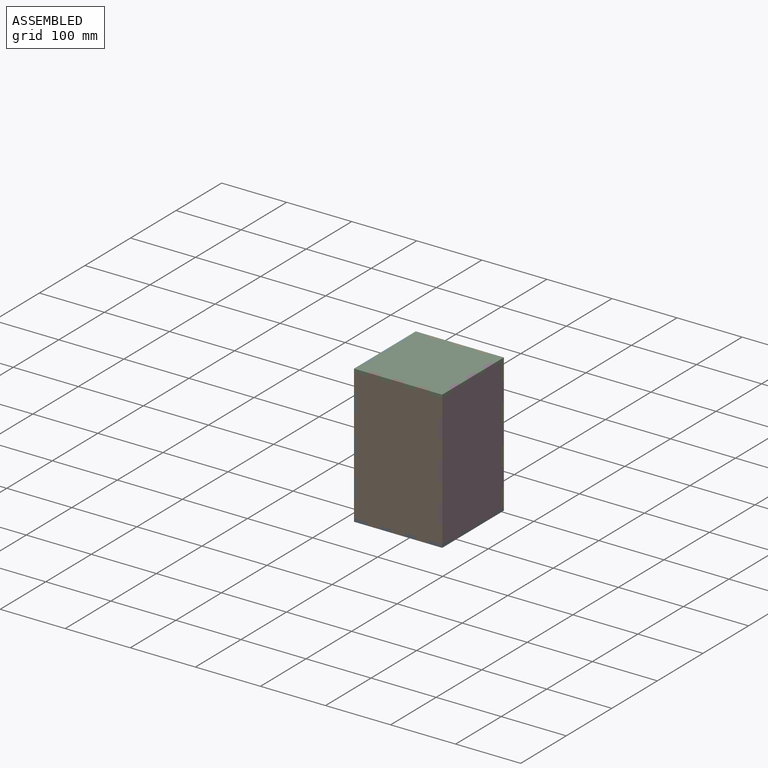
[diagram: assembled view]
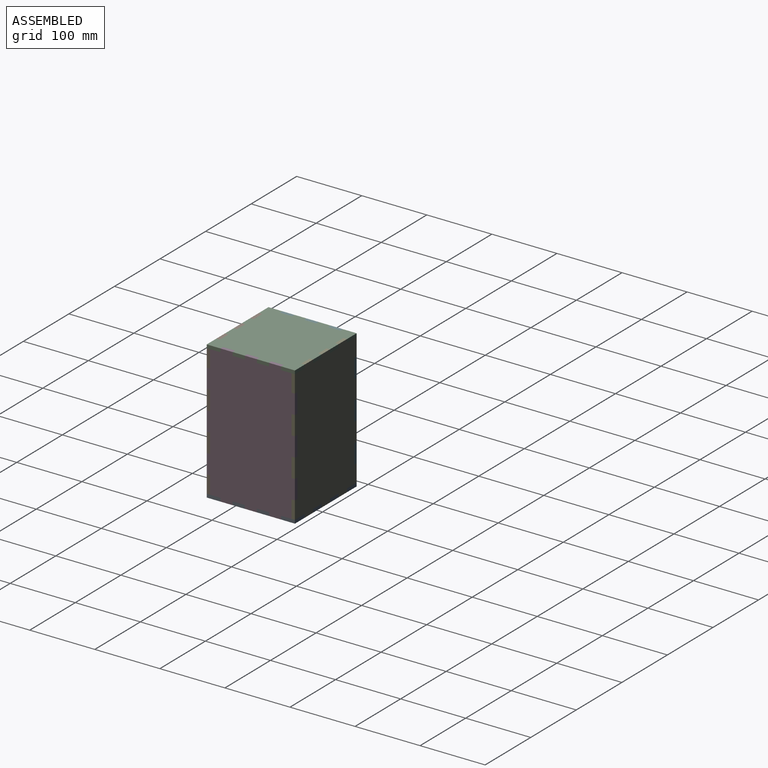
[diagram: assembled view, second angle]
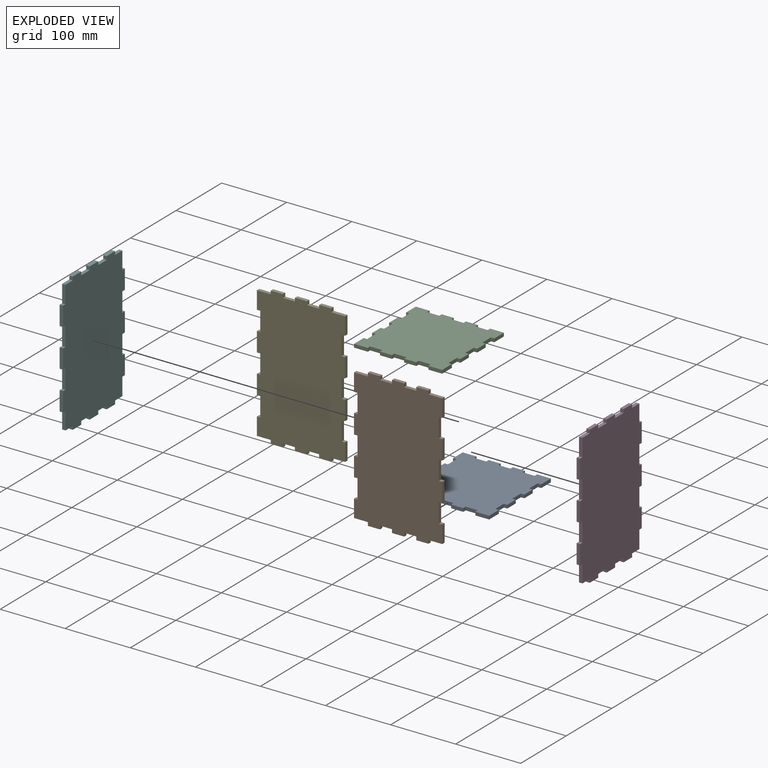
[diagram: exploded view]
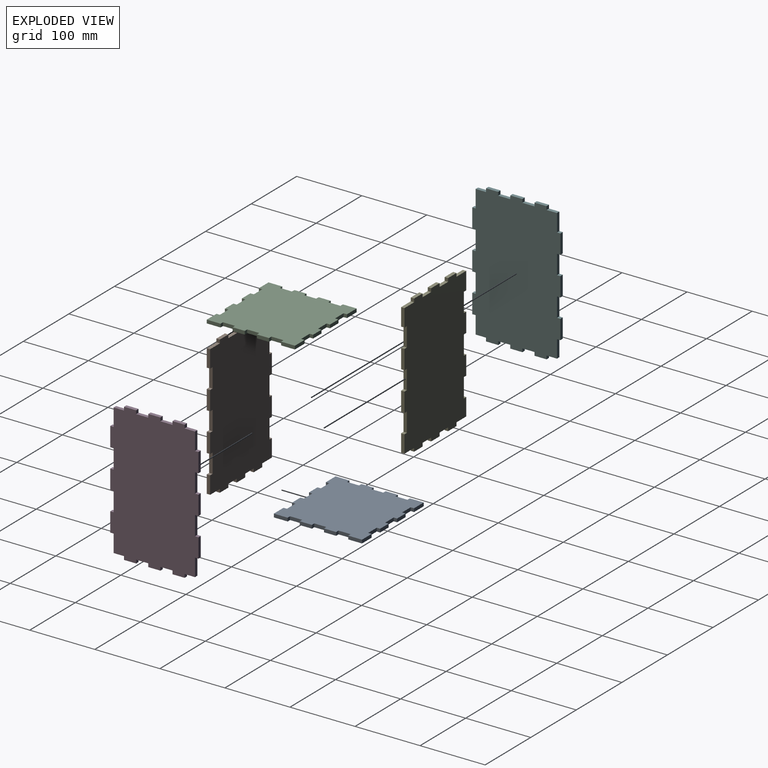
[diagram: exploded view, second angle]
ASSEMBLY  parts=6 mates=5
PART A: 54 faces, bbox 135.5x135.5x5.3 mm
  f0: plane 18.61x5.25mm, normal (0,-1,0), area 97.7mm2, adj f1,f51,f52,f53
  f1: plane 5.25x5.25mm, normal (-1,0,0), area 27.6mm2, adj f0,f2,f52,f53
  f2: plane 21.23x5.25mm, normal (0,-1,0), area 111.5mm2, adj f1,f3,f52,f53
  f3: plane 21.23x5.25mm, normal (1,0,0), area 111.5mm2, adj f2,f4,f52,f53
  f4: plane 5.25x5.25mm, normal (0,1,0), area 27.6mm2, adj f3,f5,f52,f53
  f5: plane 18.61x5.25mm, normal (1,0,0), area 97.7mm2, adj f4,f6,f52,f53
  f6: plane 5.25x5.25mm, normal (0,-1,0), area 27.6mm2, adj f5,f7,f52,f53
  f7: plane 18.61x5.25mm, normal (1,0,0), area 97.7mm2, adj f6,f8,f52,f53
  f8: plane 5.25x5.25mm, normal (0,1,0), area 27.6mm2, adj f7,f9,f52,f53
  f9: plane 18.61x5.25mm, normal (1,0,0), area 97.7mm2, adj f8,f10,f52,f53
  f10: plane 5.25x5.25mm, normal (0,-1,0), area 27.6mm2, adj f9,f11,f52,f53
  f11: plane 18.61x5.25mm, normal (1,0,0), area 97.7mm2, adj f10,f12,f52,f53
  f12: plane 5.25x5.25mm, normal (0,1,0), area 27.6mm2, adj f11,f13,f52,f53
  f13: plane 18.61x5.25mm, normal (1,0,0), area 97.7mm2, adj f12,f14,f52,f53
  f14: plane 5.25x5.25mm, normal (0,-1,0), area 27.6mm2, adj f13,f15,f52,f53
  f15: plane 21.23x5.25mm, normal (1,0,0), area 111.5mm2, adj f14,f16,f52,f53
  f16: plane 21.23x5.25mm, normal (0,1,0), area 111.5mm2, adj f15,f17,f52,f53
  f17: plane 5.25x5.25mm, normal (-1,0,0), area 27.6mm2, adj f16,f18,f52,f53
  f18: plane 18.61x5.25mm, normal (0,1,0), area 97.7mm2, adj f17,f19,f52,f53
  f19: plane 5.25x5.25mm, normal (1,0,0), area 27.6mm2, adj f18,f20,f52,f53
  f20: plane 18.61x5.25mm, normal (0,1,0), area 97.7mm2, adj f19,f21,f52,f53
  f21: plane 5.25x5.25mm, normal (-1,0,0), area 27.6mm2, adj f20,f22,f52,f53
  f22: plane 18.61x5.25mm, normal (0,1,0), area 97.7mm2, adj f21,f23,f52,f53
  f23: plane 5.25x5.25mm, normal (1,0,0), area 27.6mm2, adj f22,f24,f52,f53
  f24: plane 18.61x5.25mm, normal (0,1,0), area 97.7mm2, adj f23,f25,f52,f53
  f25: plane 5.25x5.25mm, normal (-1,0,0), area 27.6mm2, adj f24,f26,f52,f53
  f26: plane 18.61x5.25mm, normal (0,1,0), area 97.7mm2, adj f25,f27,f52,f53
  f27: plane 5.25x5.25mm, normal (1,0,0), area 27.6mm2, adj f26,f28,f52,f53
  f28: plane 21.23x5.25mm, normal (0,1,0), area 111.5mm2, adj f27,f29,f52,f53
  f29: plane 21.23x5.25mm, normal (-1,0,0), area 111.5mm2, adj f28,f30,f52,f53
  f30: plane 5.25x5.25mm, normal (0,-1,0), area 27.6mm2, adj f29,f31,f52,f53
  f31: plane 18.61x5.25mm, normal (-1,0,0), area 97.7mm2, adj f30,f32,f52,f53
  f32: plane 5.25x5.25mm, normal (0,1,0), area 27.6mm2, adj f31,f33,f52,f53
  f33: plane 18.61x5.25mm, normal (-1,0,0), area 97.7mm2, adj f32,f34,f52,f53
  f34: plane 5.25x5.25mm, normal (0,-1,0), area 27.6mm2, adj f33,f35,f52,f53
  f35: plane 18.61x5.25mm, normal (-1,0,0), area 97.7mm2, adj f34,f36,f52,f53
  f36: plane 5.25x5.25mm, normal (0,1,0), area 27.6mm2, adj f35,f37,f52,f53
  f37: plane 18.61x5.25mm, normal (-1,0,0), area 97.7mm2, adj f36,f38,f52,f53
  f38: plane 5.25x5.25mm, normal (0,-1,0), area 27.6mm2, adj f37,f39,f52,f53
  f39: plane 18.61x5.25mm, normal (-1,0,0), area 97.7mm2, adj f38,f40,f52,f53
  f40: plane 5.25x5.25mm, normal (0,1,0), area 27.6mm2, adj f39,f41,f52,f53
  f41: plane 21.23x5.25mm, normal (-1,0,0), area 111.5mm2, adj f40,f42,f52,f53
  f42: plane 21.23x5.25mm, normal (0,-1,0), area 111.5mm2, adj f41,f43,f52,f53
  f43: plane 5.25x5.25mm, normal (1,0,0), area 27.6mm2, adj f42,f44,f52,f53
  f44: plane 18.61x5.25mm, normal (0,-1,0), area 97.7mm2, adj f43,f45,f52,f53
  f45: plane 5.25x5.25mm, normal (-1,0,0), area 27.6mm2, adj f44,f46,f52,f53
  f46: plane 18.61x5.25mm, normal (0,-1,0), area 97.7mm2, adj f45,f47,f52,f53
  f47: plane 5.25x5.25mm, normal (1,0,0), area 27.6mm2, adj f46,f48,f52,f53
  f48: plane 18.61x5.25mm, normal (0,-1,0), area 97.7mm2, adj f47,f49,f52,f53
  f49: plane 5.25x5.25mm, normal (-1,0,0), area 27.6mm2, adj f48,f50,f52,f53
  f50: plane 18.61x5.25mm, normal (0,-1,0), area 97.7mm2, adj f49,f51,f52,f53
  f51: plane 5.25x5.25mm, normal (1,0,0), area 27.6mm2, adj f0,f50,f52,f53
  f52: plane 135.5x135.5mm, normal (0,0,1), area 17188mm2, adj f0,f1,f2,f3,f4,f5,f6,f7
  f53: plane 135.5x135.5mm, normal (0,0,-1), area 17188mm2, adj f0,f1,f2,f3,f4,f5,f6,f7
PART B: 54 faces, bbox 135.5x5.3x212.8 mm
  f0: plane 21.23x5.25mm, normal (0,0,-1), area 111.5mm2, adj f1,f51,f52,f53
  f1: plane 5.25x5.25mm, normal (-1,0,0), area 27.6mm2, adj f0,f2,f52,f53
  f2: plane 18.61x5.25mm, normal (0,0,-1), area 97.7mm2, adj f1,f3,f52,f53
  f3: plane 5.25x5.25mm, normal (1,0,0), area 27.6mm2, adj f2,f4,f52,f53
  f4: plane 18.61x5.25mm, normal (0,0,-1), area 97.7mm2, adj f3,f5,f52,f53
  f5: plane 5.25x5.25mm, normal (-1,0,0), area 27.6mm2, adj f4,f6,f52,f53
  f6: plane 18.61x5.25mm, normal (0,0,-1), area 97.7mm2, adj f5,f7,f52,f53
  f7: plane 5.25x5.25mm, normal (1,0,0), area 27.6mm2, adj f6,f8,f52,f53
  f8: plane 18.61x5.25mm, normal (0,0,-1), area 97.7mm2, adj f7,f9,f52,f53
  f9: plane 5.25x5.25mm, normal (-1,0,0), area 27.6mm2, adj f8,f10,f52,f53
  f10: plane 18.61x5.25mm, normal (0,0,-1), area 97.7mm2, adj f9,f11,f52,f53
  f11: plane 5.25x5.25mm, normal (1,0,0), area 27.6mm2, adj f10,f12,f52,f53
  f12: plane 21.23x5.25mm, normal (0,0,-1), area 111.5mm2, adj f11,f13,f52,f53
  f13: plane 27.02x5.25mm, normal (1,0,0), area 141.8mm2, adj f12,f14,f52,f53
  f14: plane 5.25x5.25mm, normal (0,0,1), area 27.6mm2, adj f13,f15,f52,f53
  f15: plane 29.64x5.25mm, normal (1,0,0), area 155.6mm2, adj f14,f16,f52,f53
  f16: plane 5.25x5.25mm, normal (0,0,-1), area 27.6mm2, adj f15,f17,f52,f53
  f17: plane 29.64x5.25mm, normal (1,0,0), area 155.6mm2, adj f16,f18,f52,f53
  f18: plane 5.25x5.25mm, normal (0,0,1), area 27.6mm2, adj f17,f19,f52,f53
  f19: plane 29.64x5.25mm, normal (1,0,0), area 155.6mm2, adj f18,f20,f52,f53
  f20: plane 5.25x5.25mm, normal (0,0,-1), area 27.6mm2, adj f19,f21,f52,f53
  f21: plane 29.64x5.25mm, normal (1,0,0), area 155.6mm2, adj f20,f22,f52,f53
  f22: plane 5.25x5.25mm, normal (0,0,1), area 27.6mm2, adj f21,f23,f52,f53
  f23: plane 29.64x5.25mm, normal (1,0,0), area 155.6mm2, adj f22,f24,f52,f53
  f24: plane 5.25x5.25mm, normal (0,0,-1), area 27.6mm2, adj f23,f25,f52,f53
  f25: plane 27.02x5.25mm, normal (1,0,0), area 141.8mm2, adj f24,f26,f52,f53
  f26: plane 21.23x5.25mm, normal (0,0,1), area 111.5mm2, adj f25,f27,f52,f53
  f27: plane 5.25x5.25mm, normal (1,0,0), area 27.6mm2, adj f26,f28,f52,f53
  f28: plane 18.61x5.25mm, normal (0,0,1), area 97.7mm2, adj f27,f29,f52,f53
  f29: plane 5.25x5.25mm, normal (-1,0,0), area 27.6mm2, adj f28,f30,f52,f53
  f30: plane 18.61x5.25mm, normal (0,0,1), area 97.7mm2, adj f29,f31,f52,f53
  f31: plane 5.25x5.25mm, normal (1,0,0), area 27.6mm2, adj f30,f32,f52,f53
  f32: plane 18.61x5.25mm, normal (0,0,1), area 97.7mm2, adj f31,f33,f52,f53
  f33: plane 5.25x5.25mm, normal (-1,0,0), area 27.6mm2, adj f32,f34,f52,f53
  f34: plane 18.61x5.25mm, normal (0,0,1), area 97.7mm2, adj f33,f35,f52,f53
  f35: plane 5.25x5.25mm, normal (1,0,0), area 27.6mm2, adj f34,f36,f52,f53
  f36: plane 18.61x5.25mm, normal (0,0,1), area 97.7mm2, adj f35,f37,f52,f53
  f37: plane 5.25x5.25mm, normal (-1,0,0), area 27.6mm2, adj f36,f38,f52,f53
  f38: plane 21.23x5.25mm, normal (0,0,1), area 111.5mm2, adj f37,f39,f52,f53
  f39: plane 27.02x5.25mm, normal (-1,0,0), area 141.8mm2, adj f38,f40,f52,f53
  f40: plane 5.25x5.25mm, normal (0,0,-1), area 27.6mm2, adj f39,f41,f52,f53
  f41: plane 29.64x5.25mm, normal (-1,0,0), area 155.6mm2, adj f40,f42,f52,f53
  f42: plane 5.25x5.25mm, normal (0,0,1), area 27.6mm2, adj f41,f43,f52,f53
  f43: plane 29.64x5.25mm, normal (-1,0,0), area 155.6mm2, adj f42,f44,f52,f53
  f44: plane 5.25x5.25mm, normal (0,0,-1), area 27.6mm2, adj f43,f45,f52,f53
  f45: plane 29.64x5.25mm, normal (-1,0,0), area 155.6mm2, adj f44,f46,f52,f53
  f46: plane 5.25x5.25mm, normal (0,0,1), area 27.6mm2, adj f45,f47,f52,f53
  f47: plane 29.64x5.25mm, normal (-1,0,0), area 155.6mm2, adj f46,f48,f52,f53
  f48: plane 5.25x5.25mm, normal (0,0,-1), area 27.6mm2, adj f47,f49,f52,f53
  f49: plane 29.64x5.25mm, normal (-1,0,0), area 155.6mm2, adj f48,f50,f52,f53
  f50: plane 5.25x5.25mm, normal (0,0,1), area 27.6mm2, adj f49,f51,f52,f53
  f51: plane 27.02x5.25mm, normal (-1,0,0), area 141.8mm2, adj f0,f50,f52,f53
  f52: plane 212.75x135.5mm, normal (0,-1,0), area 27057.8mm2, adj f0,f1,f2,f3,f4,f5,f6,f7
  f53: plane 212.75x135.5mm, normal (0,1,0), area 27057.8mm2, adj f0,f1,f2,f3,f4,f5,f6,f7
PART C: same geometry as A
PART D: 54 faces, bbox 135.5x5.3x212.8 mm
  f0: plane 15.98x5.25mm, normal (0,0,-1), area 83.9mm2, adj f1,f51,f52,f53
  f1: plane 5.25x5.25mm, normal (-1,0,0), area 27.6mm2, adj f0,f2,f52,f53
  f2: plane 18.61x5.25mm, normal (0,0,-1), area 97.7mm2, adj f1,f3,f52,f53
  f3: plane 5.25x5.25mm, normal (1,0,0), area 27.6mm2, adj f2,f4,f52,f53
  f4: plane 18.61x5.25mm, normal (0,0,-1), area 97.7mm2, adj f3,f5,f52,f53
  f5: plane 5.25x5.25mm, normal (-1,0,0), area 27.6mm2, adj f4,f6,f52,f53
  f6: plane 18.61x5.25mm, normal (0,0,-1), area 97.7mm2, adj f5,f7,f52,f53
  f7: plane 5.25x5.25mm, normal (1,0,0), area 27.6mm2, adj f6,f8,f52,f53
  f8: plane 18.61x5.25mm, normal (0,0,-1), area 97.7mm2, adj f7,f9,f52,f53
  f9: plane 5.25x5.25mm, normal (-1,0,0), area 27.6mm2, adj f8,f10,f52,f53
  f10: plane 18.61x5.25mm, normal (0,0,-1), area 97.7mm2, adj f9,f11,f52,f53
  f11: plane 5.25x5.25mm, normal (1,0,0), area 27.6mm2, adj f10,f12,f52,f53
  f12: plane 15.98x5.25mm, normal (0,0,-1), area 83.9mm2, adj f11,f13,f52,f53
  f13: plane 27.02x5.25mm, normal (1,0,0), area 141.8mm2, adj f12,f14,f52,f53
  f14: plane 5.25x5.25mm, normal (0,0,-1), area 27.6mm2, adj f13,f15,f52,f53
  f15: plane 29.64x5.25mm, normal (1,0,0), area 155.6mm2, adj f14,f16,f52,f53
  f16: plane 5.25x5.25mm, normal (0,0,1), area 27.6mm2, adj f15,f17,f52,f53
  f17: plane 29.64x5.25mm, normal (1,0,0), area 155.6mm2, adj f16,f18,f52,f53
  f18: plane 5.25x5.25mm, normal (0,0,-1), area 27.6mm2, adj f17,f19,f52,f53
  f19: plane 29.64x5.25mm, normal (1,0,0), area 155.6mm2, adj f18,f20,f52,f53
  f20: plane 5.25x5.25mm, normal (0,0,1), area 27.6mm2, adj f19,f21,f52,f53
  f21: plane 29.64x5.25mm, normal (1,0,0), area 155.6mm2, adj f20,f22,f52,f53
  f22: plane 5.25x5.25mm, normal (0,0,-1), area 27.6mm2, adj f21,f23,f52,f53
  f23: plane 29.64x5.25mm, normal (1,0,0), area 155.6mm2, adj f22,f24,f52,f53
  f24: plane 5.25x5.25mm, normal (0,0,1), area 27.6mm2, adj f23,f25,f52,f53
  f25: plane 27.02x5.25mm, normal (1,0,0), area 141.8mm2, adj f24,f26,f52,f53
  f26: plane 15.98x5.25mm, normal (0,0,1), area 83.9mm2, adj f25,f27,f52,f53
  f27: plane 5.25x5.25mm, normal (1,0,0), area 27.6mm2, adj f26,f28,f52,f53
  f28: plane 18.61x5.25mm, normal (0,0,1), area 97.7mm2, adj f27,f29,f52,f53
  f29: plane 5.25x5.25mm, normal (-1,0,0), area 27.6mm2, adj f28,f30,f52,f53
  f30: plane 18.61x5.25mm, normal (0,0,1), area 97.7mm2, adj f29,f31,f52,f53
  f31: plane 5.25x5.25mm, normal (1,0,0), area 27.6mm2, adj f30,f32,f52,f53
  f32: plane 18.61x5.25mm, normal (0,0,1), area 97.7mm2, adj f31,f33,f52,f53
  f33: plane 5.25x5.25mm, normal (-1,0,0), area 27.6mm2, adj f32,f34,f52,f53
  f34: plane 18.61x5.25mm, normal (0,0,1), area 97.7mm2, adj f33,f35,f52,f53
  f35: plane 5.25x5.25mm, normal (1,0,0), area 27.6mm2, adj f34,f36,f52,f53
  f36: plane 18.61x5.25mm, normal (0,0,1), area 97.7mm2, adj f35,f37,f52,f53
  f37: plane 5.25x5.25mm, normal (-1,0,0), area 27.6mm2, adj f36,f38,f52,f53
  f38: plane 15.98x5.25mm, normal (0,0,1), area 83.9mm2, adj f37,f39,f52,f53
  f39: plane 27.02x5.25mm, normal (-1,0,0), area 141.8mm2, adj f38,f40,f52,f53
  f40: plane 5.25x5.25mm, normal (0,0,1), area 27.6mm2, adj f39,f41,f52,f53
  f41: plane 29.64x5.25mm, normal (-1,0,0), area 155.6mm2, adj f40,f42,f52,f53
  f42: plane 5.25x5.25mm, normal (0,0,-1), area 27.6mm2, adj f41,f43,f52,f53
  f43: plane 29.64x5.25mm, normal (-1,0,0), area 155.6mm2, adj f42,f44,f52,f53
  f44: plane 5.25x5.25mm, normal (0,0,1), area 27.6mm2, adj f43,f45,f52,f53
  f45: plane 29.64x5.25mm, normal (-1,0,0), area 155.6mm2, adj f44,f46,f52,f53
  f46: plane 5.25x5.25mm, normal (0,0,-1), area 27.6mm2, adj f45,f47,f52,f53
  f47: plane 29.64x5.25mm, normal (-1,0,0), area 155.6mm2, adj f46,f48,f52,f53
  f48: plane 5.25x5.25mm, normal (0,0,1), area 27.6mm2, adj f47,f49,f52,f53
  f49: plane 29.64x5.25mm, normal (-1,0,0), area 155.6mm2, adj f48,f50,f52,f53
  f50: plane 5.25x5.25mm, normal (0,0,-1), area 27.6mm2, adj f49,f51,f52,f53
  f51: plane 27.02x5.25mm, normal (-1,0,0), area 141.8mm2, adj f0,f50,f52,f53
  f52: plane 212.75x135.5mm, normal (0,-1,0), area 26801.7mm2, adj f0,f1,f2,f3,f4,f5,f6,f7
  f53: plane 212.75x135.5mm, normal (0,1,0), area 26801.7mm2, adj f0,f1,f2,f3,f4,f5,f6,f7
PART E: same geometry as B
PART F: same geometry as D
PLACE A t=(-11.51,129.19,-50.81)mm
PLACE B t=(-39.01,66.69,51.69)mm
PLACE C rot(axis=(0.71,-0.71,0),180deg) t=(-11.51,129.19,161.94)mm
PLACE D rot(axis=(0,0,1),90deg) t=(50.99,101.69,51.69)mm
PLACE E t=(-39.01,196.94,51.69)mm
PLACE F rot(axis=(0,0,-1),90deg) t=(-74.01,156.69,51.69)mm
MATE fastened C.f52 <-> D.f30  axis (0,0,-1) through (56.24,147.8,156.69)mm
MATE fastened D.f53 <-> B.f19  axis (-1,0,0) through (50.99,61.44,55.57)mm
MATE fastened F.f53 <-> E.f45  axis (1,0,0) through (-74.01,196.94,55.57)mm
MATE fastened A.f26 <-> E.f52  axis (0,1,0) through (-48.72,191.69,-50.81)mm
MATE fastened E.f19 <-> D.f53  axis (1,0,0) through (50.99,196.94,55.57)mm
